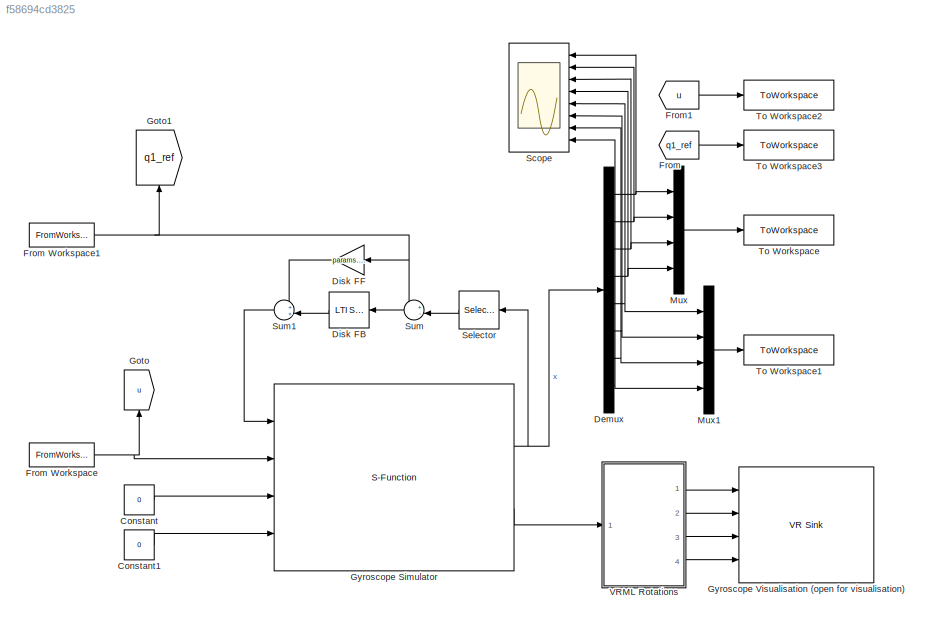
MODEL slx_f58694cd3825
KIND model
CONFIG AbsTol = auto
CONFIG EnableMultiTasking = off
CONFIG FixedStep = Ts
CONFIG MaxStep = auto
CONFIG MinStep = auto
CONFIG RelTol = 1e-3
CONFIG SampleTimeConstraint = Unconstrained
CONFIG SolverName = FixedStepAuto
CONFIG StartTime = 0.0
CONFIG StopTime = t(end)
BLOCK [Constant] Constant
  Value = 0
BLOCK [Constant] Constant1
  Value = 0
BLOCK [Demux] Demux
  Outputs = 8
  Ports = [1, 8]
BLOCK [Reference] Disk FB  REF=cstblocks/LTI System
  Ports = [1, 1]
  SourceBlock = cstblocks/LTI System
  SourceProductBaseCode = CT
  SourceType = LTI Block
BLOCK [Gain] Disk FF
  Gain = params.fv1/params.Km1
BLOCK [From] From
  GotoTag = q1_ref
BLOCK [FromWorkspace] From Workspace
  VariableName = u
BLOCK [FromWorkspace] From Workspace1
  VariableName = q1_ref
BLOCK [From] From1
  GotoTag = u
BLOCK [Goto] Goto
  GotoTag = u
  NameLocation = right
BLOCK [Goto] Goto1
  GotoTag = q1_ref
  NameLocation = right
BLOCK [S-Function] Gyroscope Simulator
  EnableBusSupport = off
  FunctionName = gyro_simulation
  Parameters = x0,f,w1l,q2l,q3l,q4l,inertia,Km
  Ports = [4, 2]
  SFcnIsStateOwnerBlock = off
  SFunctionDeploymentMode = off
BLOCK [Reference] Gyroscope Visualisation (open for visualisation)  REF=vrlib/VR Sink
  Commented = on
  InstantiateOnLoad = on
  Ports = [4]
  SourceBlock = vrlib/VR Sink
  SourceProductBaseCode = SL
  SourceType = Virtual Reality Sink
BLOCK [Mux] Mux
  DisplayOption = bar
  Ports = [4, 1]
BLOCK [Mux] Mux1
  DisplayOption = bar
  Ports = [4, 1]
BLOCK [Scope] Scope
  Commented = on
  Floating = off
  NumInputPorts = 8
  Ports = [8]
  ScopeSpecificationString = Simulink.scopes.TimeScopeBlockCfg('CurrentConfiguration', extmgr.ConfigurationSet(extmgr.Configuration('Core','General UI',true),extmgr.Configuration('Core','Source UI',true),extmgr.Configuration('Sources','WiredSimulink',true),extmgr.Configuration('Visuals','Time Domain',true,'SerializedDisplays',{struct('MinYLimReal','-49.37369','MaxYLimReal','444.36322','YLabelReal','','MinYLimMag','0.00000','M...<+6067ch>
BLOCK [Selector] Selector
  IndexOptions = Index vector (dialog)
  Indices = 5
  InputPortWidth = 8
  OutputSizes = 1
  Ports = [1, 1]
BLOCK [Sum] Sum
  Inputs = +-|
  Ports = [2, 1]
BLOCK [Sum] Sum1
  Inputs = ++|
  Ports = [2, 1]
BLOCK [ToWorkspace] To Workspace
  FixptAsFi = on
  MaxDataPoints = inf
  Ports = [1]
  SampleTime = -1
  SaveFormat = Timeseries
  VariableName = q
BLOCK [ToWorkspace] To Workspace1
  FixptAsFi = on
  MaxDataPoints = inf
  Ports = [1]
  SampleTime = -1
  SaveFormat = Timeseries
  VariableName = qd
BLOCK [ToWorkspace] To Workspace2
  FixptAsFi = on
  MaxDataPoints = inf
  Ports = [1]
  SampleTime = -1
  SaveFormat = Timeseries
  VariableName = u
BLOCK [ToWorkspace] To Workspace3
  FixptAsFi = on
  MaxDataPoints = inf
  Ports = [1]
  SampleTime = -1
  SaveFormat = Timeseries
  VariableName = q1_ref
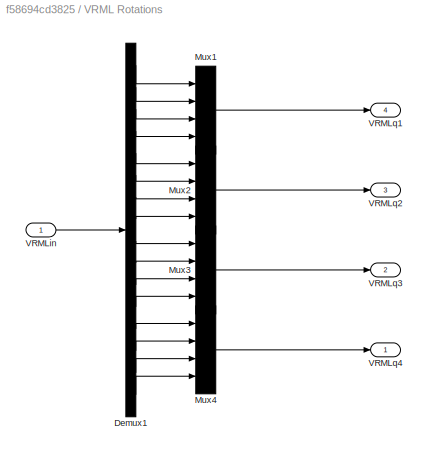
BLOCK [SubSystem] VRML Rotations 
  Commented = on
  Ports = [1, 4]
  RequestExecContextInheritance = off
BLOCK [Demux] VRML Rotations /Demux1
  Outputs = 16
  Ports = [1, 16]
BLOCK [Mux] VRML Rotations /Mux1
  DisplayOption = bar
  Ports = [4, 1]
BLOCK [Mux] VRML Rotations /Mux2
  DisplayOption = bar
  Ports = [4, 1]
BLOCK [Mux] VRML Rotations /Mux3
  DisplayOption = bar
  Ports = [4, 1]
BLOCK [Mux] VRML Rotations /Mux4
  DisplayOption = bar
  Ports = [4, 1]
BLOCK [Inport] VRML Rotations /VRMLin
BLOCK [Outport] VRML Rotations /VRMLq1
  Port = 4
BLOCK [Outport] VRML Rotations /VRMLq2
  Port = 3
BLOCK [Outport] VRML Rotations /VRMLq3
  Port = 2
BLOCK [Outport] VRML Rotations /VRMLq4
LINE Constant1:1 -> Gyroscope Simulator:4
LINE Constant:1 -> Gyroscope Simulator:3
NET Demux:1 -> Mux:1, Scope:1
NET Demux:2 -> Mux:2, Scope:2
NET Demux:3 -> Mux:3, Scope:3
NET Demux:4 -> Mux:4, Scope:4
NET Demux:5 -> Mux1:1, Scope:5
NET Demux:6 -> Mux1:2, Scope:6
NET Demux:7 -> Mux1:3, Scope:7
NET Demux:8 -> Mux1:4, Scope:8
LINE Disk FB:1 -> Sum1:2
LINE Disk FF:1 -> Sum1:1
NET From Workspace1:1 -> Disk FF:1, Goto1:1, Sum:1
NET From Workspace:1 -> Goto:1, Gyroscope Simulator:2
LINE From1:1 -> To Workspace2:1
LINE From:1 -> To Workspace3:1
NET Gyroscope Simulator:1 -> Demux:1, Selector:1
LINE Gyroscope Simulator:2 -> VRML Rotations :1
LINE Mux1:1 -> To Workspace1:1
LINE Mux:1 -> To Workspace:1
LINE Selector:1 -> Sum:2
LINE Sum1:1 -> Gyroscope Simulator:1
LINE Sum:1 -> Disk FB:1
LINE VRML Rotations /Demux1:1 -> VRML Rotations /Mux1:1
LINE VRML Rotations /Demux1:10 -> VRML Rotations /Mux3:2
LINE VRML Rotations /Demux1:11 -> VRML Rotations /Mux3:3
LINE VRML Rotations /Demux1:12 -> VRML Rotations /Mux3:4
LINE VRML Rotations /Demux1:13 -> VRML Rotations /Mux4:1
LINE VRML Rotations /Demux1:14 -> VRML Rotations /Mux4:2
LINE VRML Rotations /Demux1:15 -> VRML Rotations /Mux4:3
LINE VRML Rotations /Demux1:16 -> VRML Rotations /Mux4:4
LINE VRML Rotations /Demux1:2 -> VRML Rotations /Mux1:2
LINE VRML Rotations /Demux1:3 -> VRML Rotations /Mux1:3
LINE VRML Rotations /Demux1:4 -> VRML Rotations /Mux1:4
LINE VRML Rotations /Demux1:5 -> VRML Rotations /Mux2:1
LINE VRML Rotations /Demux1:6 -> VRML Rotations /Mux2:2
LINE VRML Rotations /Demux1:7 -> VRML Rotations /Mux2:3
LINE VRML Rotations /Demux1:8 -> VRML Rotations /Mux2:4
LINE VRML Rotations /Demux1:9 -> VRML Rotations /Mux3:1
LINE VRML Rotations /Mux1:1 -> VRML Rotations /VRMLq1:1
LINE VRML Rotations /Mux2:1 -> VRML Rotations /VRMLq2:1
LINE VRML Rotations /Mux3:1 -> VRML Rotations /VRMLq3:1
LINE VRML Rotations /Mux4:1 -> VRML Rotations /VRMLq4:1
LINE VRML Rotations /VRMLin:1 -> VRML Rotations /Demux1:1
LINE VRML Rotations :1 -> Gyroscope Visualisation (open for visualisation):1
LINE VRML Rotations :2 -> Gyroscope Visualisation (open for visualisation):2
LINE VRML Rotations :3 -> Gyroscope Visualisation (open for visualisation):3
LINE VRML Rotations :4 -> Gyroscope Visualisation (open for visualisation):4
note: NET lines group one-source signal fan-out (src -> all destinations, sorted); 1:1 wires keep LINE
